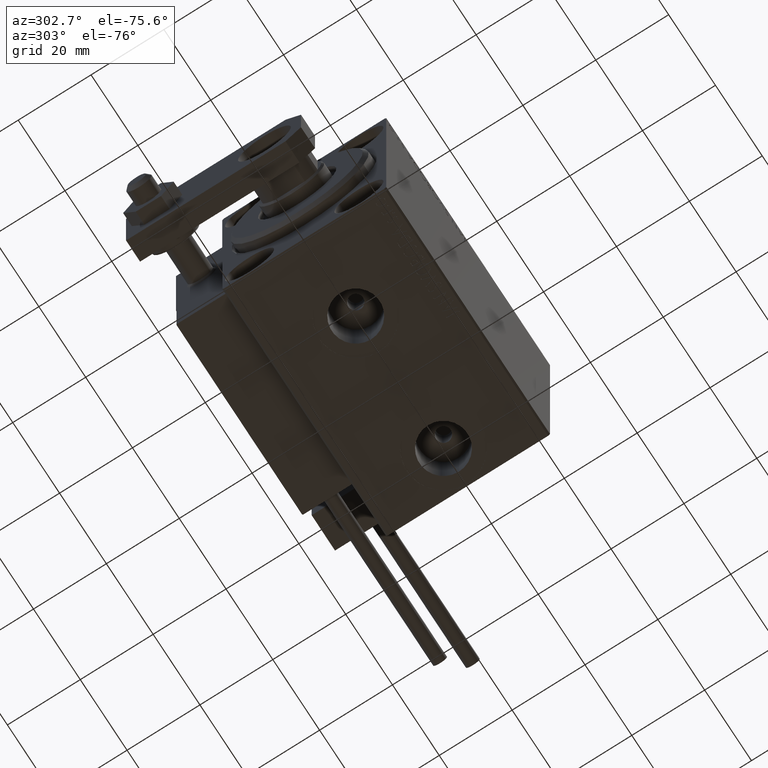
[diagram: clean part render]
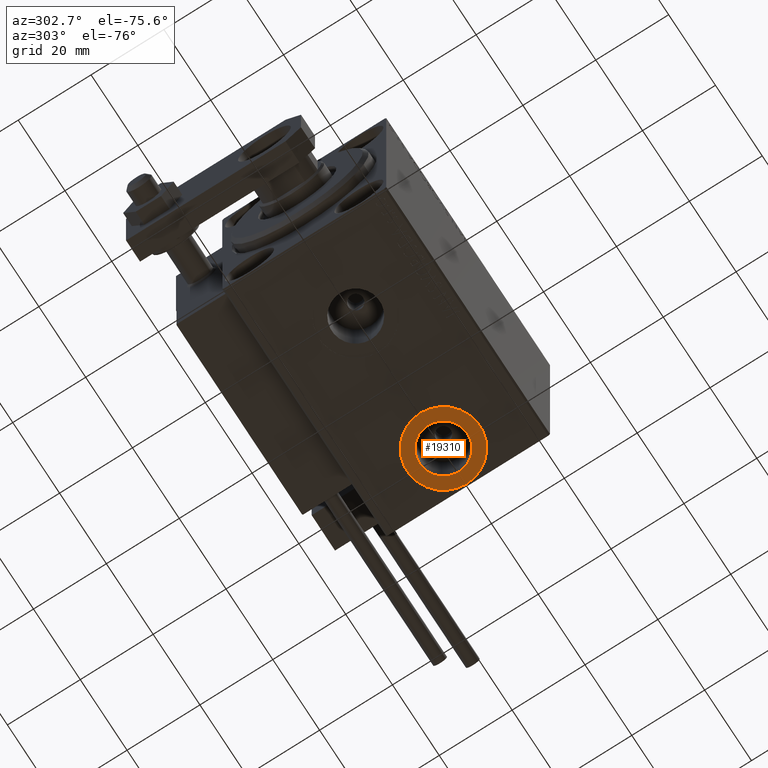
[diagram: same view with one face highlighted and labeled with its STEP entity id]
A machine part, auxiliary view. The second image highlights one B-rep face of the part: STEP entity #19310.
In plain terms, the highlighted planar face has unit normal (0, 0, -1).
Its self-contained STEP definition (entity closure, byte-faithful):
#1091 = DIRECTION ( 'NONE',  ( -1.000000000000000000, 0.000000000000000000, -0.000000000000000000 ) ) ;
#2208 = EDGE_LOOP ( 'NONE', ( #21810, #31861 ) ) ;
#3971 = DIRECTION ( 'NONE',  ( -1.000000000000000000, 0.000000000000000000, 0.000000000000000000 ) ) ;
#4226 = DIRECTION ( 'NONE',  ( 0.000000000000000000, 0.000000000000000000, -1.000000000000000000 ) ) ;
#4287 = CIRCLE ( 'NONE', #44929, 6.580000000000002736 ) ;
#4787 = CARTESIAN_POINT ( 'NONE',  ( 59.50000000000000711, -6.655964947265702476E-15, -32.40000000000000568 ) ) ;
#5192 = ORIENTED_EDGE ( 'NONE', *, *, #15564, .T. ) ;
#8096 = EDGE_CURVE ( 'NONE', #35121, #34502, #49146, .T. ) ;
#8333 = CARTESIAN_POINT ( 'NONE',  ( 49.50000000000000000, -6.655964947265702476E-15, -32.40000000000000568 ) ) ;
#10349 = CIRCLE ( 'NONE', #34758, 6.580000000000002736 ) ;
#13555 = DIRECTION ( 'NONE',  ( 0.000000000000000000, 0.000000000000000000, -1.000000000000000000 ) ) ;
#13683 = DIRECTION ( 'NONE',  ( -1.000000000000000000, 0.000000000000000000, 0.000000000000000000 ) ) ;
#15564 = EDGE_CURVE ( 'NONE', #34502, #35121, #21769, .T. ) ;
#16937 = CARTESIAN_POINT ( 'NONE',  ( 69.50000000000000000, -5.431318148118349417E-15, -32.40000000000000568 ) ) ;
#18608 = CARTESIAN_POINT ( 'NONE',  ( 66.07999999999999829, -5.850147353426743435E-15, -32.40000000000000568 ) ) ;
#19310 = ADVANCED_FACE ( 'NONE', ( #25020, #40292 ), #36473, .T. ) ;
#21012 = DIRECTION ( 'NONE',  ( 0.000000000000000000, 0.000000000000000000, -1.000000000000000000 ) ) ;
#21565 = EDGE_LOOP ( 'NONE', ( #29833, #5192 ) ) ;
#21769 = CIRCLE ( 'NONE', #29100, 10.00000000000000178 ) ;
#21810 = ORIENTED_EDGE ( 'NONE', *, *, #32409, .F. ) ;
#23616 = VERTEX_POINT ( 'NONE', #18608 ) ;
#23789 = VERTEX_POINT ( 'NONE', #28678 ) ;
#23957 = AXIS2_PLACEMENT_3D ( 'NONE', #4787, #37355, #13683 ) ;
#25020 = FACE_BOUND ( 'NONE', #2208, .T. ) ;
#25087 = DIRECTION ( 'NONE',  ( -1.000000000000000000, 0.000000000000000000, 0.000000000000000000 ) ) ;
#28678 = CARTESIAN_POINT ( 'NONE',  ( 52.92000000000000171, -6.655964947265702476E-15, -32.40000000000000568 ) ) ;
#29100 = AXIS2_PLACEMENT_3D ( 'NONE', #43685, #21012, #25087 ) ;
#29833 = ORIENTED_EDGE ( 'NONE', *, *, #8096, .T. ) ;
#30733 = EDGE_CURVE ( 'NONE', #23616, #23789, #4287, .T. ) ;
#31744 = DIRECTION ( 'NONE',  ( 0.000000000000000000, 0.000000000000000000, -1.000000000000000000 ) ) ;
#31861 = ORIENTED_EDGE ( 'NONE', *, *, #30733, .F. ) ;
#32409 = EDGE_CURVE ( 'NONE', #23789, #23616, #10349, .T. ) ;
#32753 = CARTESIAN_POINT ( 'NONE',  ( 59.50000000000000711, -6.655964947265702476E-15, -32.40000000000000568 ) ) ;
#34502 = VERTEX_POINT ( 'NONE', #16937 ) ;
#34758 = AXIS2_PLACEMENT_3D ( 'NONE', #38838, #4226, #3971 ) ;
#35121 = VERTEX_POINT ( 'NONE', #8333 ) ;
#36473 = PLANE ( 'NONE',  #46296 ) ;
#37355 = DIRECTION ( 'NONE',  ( 0.000000000000000000, 0.000000000000000000, -1.000000000000000000 ) ) ;
#38838 = CARTESIAN_POINT ( 'NONE',  ( 59.50000000000000711, -6.655964947265702476E-15, -32.40000000000000568 ) ) ;
#40292 = FACE_OUTER_BOUND ( 'NONE', #21565, .T. ) ;
#40538 = CARTESIAN_POINT ( 'NONE',  ( 59.50000000000000711, -6.655964947265702476E-15, -32.40000000000000568 ) ) ;
#43685 = CARTESIAN_POINT ( 'NONE',  ( 59.50000000000000711, -6.655964947265702476E-15, -32.40000000000000568 ) ) ;
#44929 = AXIS2_PLACEMENT_3D ( 'NONE', #32753, #31744, #48270 ) ;
#46296 = AXIS2_PLACEMENT_3D ( 'NONE', #40538, #13555, #1091 ) ;
#48270 = DIRECTION ( 'NONE',  ( -1.000000000000000000, 0.000000000000000000, 0.000000000000000000 ) ) ;
#49146 = CIRCLE ( 'NONE', #23957, 10.00000000000000178 ) ;